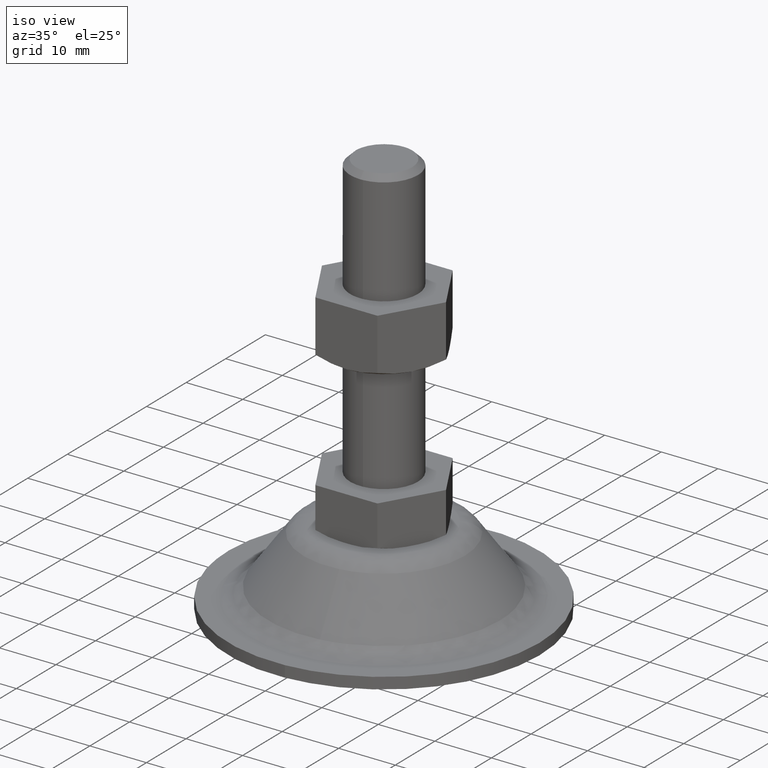
[diagram: clean part render]
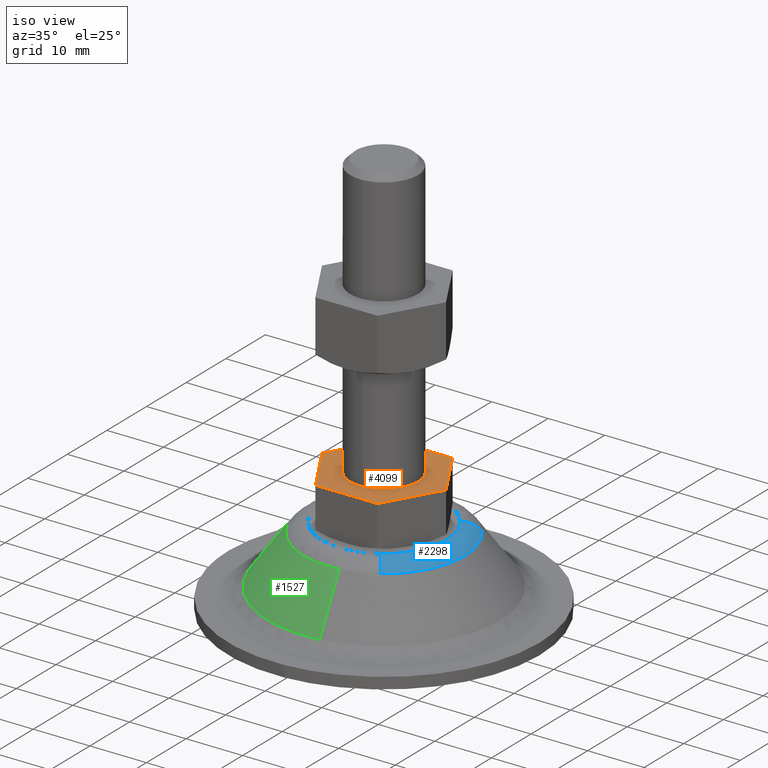
[diagram: same view with three faces highlighted in distinct colors, each labeled with its STEP entity id]
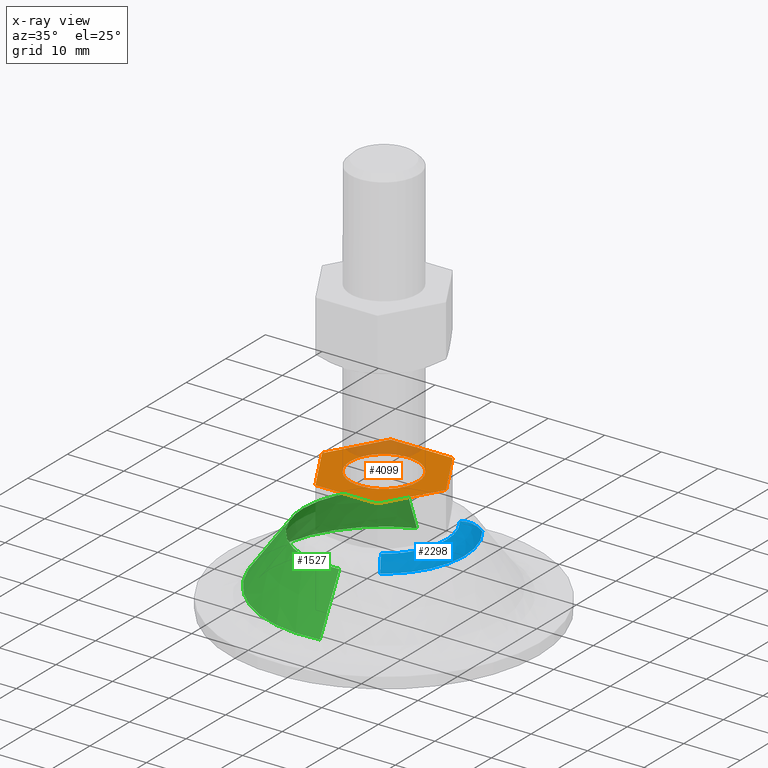
[diagram: x-ray of the same camera — body ghosted, the three highlighted faces saturated]
A machine part, iso view with three faces highlighted in distinct colors.
The next image is the same camera in x-ray (body ghosted, the three faces saturated) — at least one of them is partly hidden behind the body in this view.
Their STEP definitions:

[orange] entity #4099 — the highlighted face is a freeform B-spline surface patch.
#2837=CARTESIAN_POINT('',(0.470754574447207,-5.981504002392460,22.0));
#2838=VERTEX_POINT('',#2837);
#2844=CARTESIAN_POINT('',(6.0,0.0,22.0));
#2845=VERTEX_POINT('',#2844);
#2846=CARTESIAN_POINT('',(6.0,0.0,22.0));
#2847=CARTESIAN_POINT('',(6.000000000000001,-5.546342949800173,22.000000000000004));
#2848=CARTESIAN_POINT('',(0.470754574447207,-5.981504002392460,21.999999999999993));
#2856=(BOUNDED_CURVE()B_SPLINE_CURVE(2,(#2846,#2847,#2848),.UNSPECIFIED.,.F.,.U.)B_SPLINE_CURVE_WITH_KNOTS((3,3),(0.0,0.236331300628174),.UNSPECIFIED.)CURVE()GEOMETRIC_REPRESENTATION_ITEM()RATIONAL_B_SPLINE_CURVE((1.0,0.723120658610578,0.969723356162230))REPRESENTATION_ITEM(''));
#2857=EDGE_CURVE('',#2845,#2838,#2856,.T.);
#2859=CARTESIAN_POINT('',(-0.470754574447207,5.981504002392461,22.0));
#2860=VERTEX_POINT('',#2859);
#2861=CARTESIAN_POINT('',(-0.470754574447208,5.981504002392461,21.999999999999996));
#2862=CARTESIAN_POINT('',(-0.235740642126526,6.000000000000001,22.000000000000004));
#2863=CARTESIAN_POINT('',(0.0,6.0,22.0));
#2864=CARTESIAN_POINT('',(6.0,6.0,22.000000000000007));
#2865=CARTESIAN_POINT('',(6.0,0.0,22.0));
#2873=(BOUNDED_CURVE()B_SPLINE_CURVE(2,(#2861,#2862,#2863,#2864,#2865),.UNSPECIFIED.,.F.,.U.)B_SPLINE_CURVE_WITH_KNOTS((3,2,3),(0.736331300628174,0.750000000000000,1.0),.UNSPECIFIED.)CURVE()GEOMETRIC_REPRESENTATION_ITEM()RATIONAL_B_SPLINE_CURVE((0.969723356162230,0.983986122575969,1.0,0.707106781186548,1.0))REPRESENTATION_ITEM(''));
#2874=EDGE_CURVE('',#2860,#2845,#2873,.T.);
#2908=CARTESIAN_POINT('',(-6.0,0.0,22.0));
#2909=VERTEX_POINT('',#2908);
#2910=CARTESIAN_POINT('',(-6.0,0.0,22.0));
#2911=CARTESIAN_POINT('',(-6.0,5.546342949800190,21.999999999999993));
#2912=CARTESIAN_POINT('',(-0.470754574447208,5.981504002392461,21.999999999999993));
#2920=(BOUNDED_CURVE()B_SPLINE_CURVE(2,(#2910,#2911,#2912),.UNSPECIFIED.,.F.,.U.)B_SPLINE_CURVE_WITH_KNOTS((3,3),(0.500000000000000,0.736331300628174),.UNSPECIFIED.)CURVE()GEOMETRIC_REPRESENTATION_ITEM()RATIONAL_B_SPLINE_CURVE((1.0,0.723120658610578,0.969723356162231))REPRESENTATION_ITEM(''));
#2921=EDGE_CURVE('',#2909,#2860,#2920,.T.);
#2923=CARTESIAN_POINT('',(0.470754574447207,-5.981504002392460,21.999999999999993));
#2924=CARTESIAN_POINT('',(0.235740642126525,-6.0,22.0));
#2925=CARTESIAN_POINT('',(0.0,-6.0,22.0));
#2926=CARTESIAN_POINT('',(-6.0,-6.0,22.000000000000007));
#2927=CARTESIAN_POINT('',(-6.0,0.0,22.0));
#2935=(BOUNDED_CURVE()B_SPLINE_CURVE(2,(#2923,#2924,#2925,#2926,#2927),.UNSPECIFIED.,.F.,.U.)B_SPLINE_CURVE_WITH_KNOTS((3,2,3),(0.236331300628174,0.250000000000000,0.500000000000000),.UNSPECIFIED.)CURVE()GEOMETRIC_REPRESENTATION_ITEM()RATIONAL_B_SPLINE_CURVE((0.969723356162230,0.983986122575970,1.0,0.707106781186548,1.0))REPRESENTATION_ITEM(''));
#2936=EDGE_CURVE('',#2838,#2909,#2935,.T.);
#4044=CARTESIAN_POINT('',(-12.065523697927929,-10.449049963174311,22.0));
#4045=CARTESIAN_POINT('',(12.065524090233341,-10.449049963174311,22.0));
#4046=CARTESIAN_POINT('',(-12.065523697927929,10.449050472794029,22.0));
#4047=CARTESIAN_POINT('',(12.065524090233341,10.449050472794029,22.0));
#4048=B_SPLINE_SURFACE_WITH_KNOTS('',1,1,((#4044,#4046),(#4045,#4047)),.UNSPECIFIED.,.F.,.F.,.U.,(2,2),(2,2),(0.0,24.131047788161268),(0.0,20.898100435968342),.UNSPECIFIED.);
#4049=CARTESIAN_POINT('',(-5.484827000000000,-9.500000000000000,22.0));
#4050=VERTEX_POINT('',#4049);
#4051=CARTESIAN_POINT('',(5.484827999999999,-9.500000000000000,22.0));
#4052=VERTEX_POINT('',#4051);
#4053=CARTESIAN_POINT('',(-5.484827000000000,-9.500000000000000,22.0));
#4054=CARTESIAN_POINT('',(5.484827999999999,-9.500000000000000,22.0));
#4055=QUASI_UNIFORM_CURVE('',1,(#4053,#4054),.UNSPECIFIED.,.F.,.U.);
#4056=EDGE_CURVE('',#4050,#4052,#4055,.T.);
#4057=ORIENTED_EDGE('',*,*,#4056,.T.);
#4058=CARTESIAN_POINT('',(10.969654999999999,0.0,22.0));
#4059=VERTEX_POINT('',#4058);
#4060=CARTESIAN_POINT('',(5.484827999999999,-9.500000000000000,22.0));
#4061=CARTESIAN_POINT('',(10.969654999999999,0.0,22.0));
#4062=QUASI_UNIFORM_CURVE('',1,(#4060,#4061),.UNSPECIFIED.,.F.,.U.);
#4063=EDGE_CURVE('',#4052,#4059,#4062,.T.);
#4064=ORIENTED_EDGE('',*,*,#4063,.T.);
#4065=CARTESIAN_POINT('',(5.484827999999999,9.500000000000000,22.0));
#4066=VERTEX_POINT('',#4065);
#4067=CARTESIAN_POINT('',(10.969654999999999,0.0,22.0));
#4068=CARTESIAN_POINT('',(5.484827999999999,9.500000000000000,22.0));
#4069=QUASI_UNIFORM_CURVE('',1,(#4067,#4068),.UNSPECIFIED.,.F.,.U.);
#4070=EDGE_CURVE('',#4059,#4066,#4069,.T.);
#4071=ORIENTED_EDGE('',*,*,#4070,.T.);
#4072=CARTESIAN_POINT('',(-5.484827000000000,9.500000000000000,22.0));
#4073=VERTEX_POINT('',#4072);
#4074=CARTESIAN_POINT('',(5.484827999999999,9.500000000000000,22.0));
#4075=CARTESIAN_POINT('',(-5.484827000000000,9.500000000000000,22.0));
#4076=QUASI_UNIFORM_CURVE('',1,(#4074,#4075),.UNSPECIFIED.,.F.,.U.);
#4077=EDGE_CURVE('',#4066,#4073,#4076,.T.);
#4078=ORIENTED_EDGE('',*,*,#4077,.T.);
#4079=CARTESIAN_POINT('',(-10.969655000000021,0.0,22.0));
#4080=VERTEX_POINT('',#4079);
#4081=CARTESIAN_POINT('',(-5.484827000000000,9.500000000000000,22.0));
#4082=CARTESIAN_POINT('',(-10.969655000000021,0.0,22.0));
#4083=QUASI_UNIFORM_CURVE('',1,(#4081,#4082),.UNSPECIFIED.,.F.,.U.);
#4084=EDGE_CURVE('',#4073,#4080,#4083,.T.);
#4085=ORIENTED_EDGE('',*,*,#4084,.T.);
#4086=CARTESIAN_POINT('',(-10.969655000000021,0.0,22.0));
#4087=CARTESIAN_POINT('',(-5.484827000000000,-9.500000000000000,22.0));
#4088=QUASI_UNIFORM_CURVE('',1,(#4086,#4087),.UNSPECIFIED.,.F.,.U.);
#4089=EDGE_CURVE('',#4080,#4050,#4088,.T.);
#4090=ORIENTED_EDGE('',*,*,#4089,.T.);
#4091=EDGE_LOOP('',(#4057,#4064,#4071,#4078,#4085,#4090));
#4092=FACE_OUTER_BOUND('',#4091,.T.);
#4093=ORIENTED_EDGE('',*,*,#2921,.T.);
#4094=ORIENTED_EDGE('',*,*,#2874,.T.);
#4095=ORIENTED_EDGE('',*,*,#2857,.T.);
#4096=ORIENTED_EDGE('',*,*,#2936,.T.);
#4097=EDGE_LOOP('',(#4093,#4094,#4095,#4096));
#4098=FACE_BOUND('',#4097,.T.);
#4099=ADVANCED_FACE('',(#4092,#4098),#4048,.T.);

[blue] entity #2298 — the highlighted face is a freeform B-spline surface patch.
#1611=CARTESIAN_POINT('',(11.528268955643940,8.375777670577630,12.332229066283320));
#1612=VERTEX_POINT('',#1611);
#1628=CARTESIAN_POINT('',(14.249724000000020,0.0,12.332229000000099));
#1629=VERTEX_POINT('',#1628);
#1630=CARTESIAN_POINT('',(11.528268955643940,8.375777670577630,12.332229066283316));
#1631=CARTESIAN_POINT('',(14.249724000000016,4.630015993499182,12.332229000000101));
#1632=CARTESIAN_POINT('',(14.249724000000020,0.0,12.332229000000099));
#1640=(BOUNDED_CURVE()B_SPLINE_CURVE(2,(#1630,#1631,#1632),.UNSPECIFIED.,.F.,.U.)B_SPLINE_CURVE_WITH_KNOTS((3,3),(0.398750340999422,0.500000000000000),.UNSPECIFIED.)CURVE()GEOMETRIC_REPRESENTATION_ITEM()RATIONAL_B_SPLINE_CURVE((0.858840265006102,0.881378645886225,1.0))REPRESENTATION_ITEM(''));
#1641=EDGE_CURVE('',#1612,#1629,#1640,.T.);
#1643=CARTESIAN_POINT('',(7.702739872258517,-11.988429219926459,12.332229066270751));
#1644=VERTEX_POINT('',#1643);
#1645=CARTESIAN_POINT('',(14.249724000000020,0.0,12.332229000000099));
#1646=CARTESIAN_POINT('',(14.249724000000018,-7.781896731710817,12.332229000000105));
#1647=CARTESIAN_POINT('',(7.702739872258518,-11.988429219926456,12.332229066270751));
#1655=(BOUNDED_CURVE()B_SPLINE_CURVE(2,(#1645,#1646,#1647),.UNSPECIFIED.,.F.,.U.)B_SPLINE_CURVE_WITH_KNOTS((3,3),(0.500000000000000,0.657460173955830),.UNSPECIFIED.)CURVE()GEOMETRIC_REPRESENTATION_ITEM()RATIONAL_B_SPLINE_CURVE((1.0,0.815523931260603,0.863428933516351))REPRESENTATION_ITEM(''));
#1656=EDGE_CURVE('',#1629,#1644,#1655,.T.);
#2172=CARTESIAN_POINT('',(5.946089766195659,-9.254405247961721,14.0));
#2173=VERTEX_POINT('',#2172);
#2191=CARTESIAN_POINT('',(8.899186938911203,6.465637775887245,14.0));
#2192=VERTEX_POINT('',#2191);
#2208=CARTESIAN_POINT('',(8.899186938911203,6.465637775887245,14.000000000000002));
#2209=CARTESIAN_POINT('',(10.559949388730685,7.672252324497060,13.999999998942421));
#2210=CARTESIAN_POINT('',(11.528268955643936,8.375777670577630,12.332229066283315));
#2218=(BOUNDED_CURVE()B_SPLINE_CURVE(2,(#2208,#2209,#2210),.UNSPECIFIED.,.F.,.U.)B_SPLINE_CURVE_WITH_KNOTS((3,3),(-1.618740155537907,-0.390319360105098),.UNSPECIFIED.)CURVE()GEOMETRIC_REPRESENTATION_ITEM()RATIONAL_B_SPLINE_CURVE((0.917291948513683,0.815431626496268,0.915800522472462))REPRESENTATION_ITEM(''));
#2219=EDGE_CURVE('',#2192,#1612,#2218,.T.);
#2225=CARTESIAN_POINT('',(5.946089766195659,-9.254405247961721,13.999999999999996));
#2226=CARTESIAN_POINT('',(7.055746488386194,-10.981458386600515,13.999999999945967));
#2227=CARTESIAN_POINT('',(7.702739872258517,-11.988429219926450,12.332229066270745));
#2235=(BOUNDED_CURVE()B_SPLINE_CURVE(2,(#2225,#2226,#2227),.UNSPECIFIED.,.F.,.U.)B_SPLINE_CURVE_WITH_KNOTS((3,3),(-1.618740156196064,-0.390319360094702),.UNSPECIFIED.)CURVE()GEOMETRIC_REPRESENTATION_ITEM()RATIONAL_B_SPLINE_CURVE((0.896658200801483,0.797089144998499,0.895200323089700))REPRESENTATION_ITEM(''));
#2236=EDGE_CURVE('',#2173,#1644,#2235,.T.);
#2241=CARTESIAN_POINT('',(8.752588906192633,6.359128070496875,13.995893479540475));
#2242=CARTESIAN_POINT('',(15.111716976689509,-2.393460835695761,13.995893479540477));
#2243=CARTESIAN_POINT('',(6.359128070496875,-8.752588906192633,13.995893479540475));
#2244=CARTESIAN_POINT('',(6.108632978091093,-8.934584243882069,13.995893479540477));
#2245=CARTESIAN_POINT('',(5.848139178864972,-9.101955313140811,13.995893479540486));
#2246=CARTESIAN_POINT('',(10.601433560269035,7.702392339358740,14.099526789685839));
#2247=CARTESIAN_POINT('',(18.303825899627778,-2.899041220910297,14.099526789685839));
#2248=CARTESIAN_POINT('',(7.702392339358740,-10.601433560269035,14.099526789685839));
#2249=CARTESIAN_POINT('',(7.398984158330787,-10.821872507130594,14.099526789685843));
#2250=CARTESIAN_POINT('',(7.083465203315789,-11.024598042360788,14.099526789685848));
#2251=CARTESIAN_POINT('',(11.611181162287151,8.436016914776335,12.182359588724589));
#2252=CARTESIAN_POINT('',(20.047198077063484,-3.175164247510819,12.182359588724589));
#2253=CARTESIAN_POINT('',(8.436016914776335,-11.611181162287151,12.182359588724589));
#2254=CARTESIAN_POINT('',(8.103710219082043,-11.852616109049999,12.182359588724594));
#2255=CARTESIAN_POINT('',(7.758139242667631,-12.074650506794182,12.182359588724596));
#2263=(BOUNDED_SURFACE()B_SPLINE_SURFACE(2,2,((#2241,#2246,#2251),(#2242,#2247,#2252),(#2243,#2248,#2253),(#2244,#2249,#2254),(#2245,#2250,#2255)),.UNSPECIFIED.,.F.,.F.,.U.)B_SPLINE_SURFACE_WITH_KNOTS((3,2,3),(3,3),(0.0,23.779518828556629,24.730698674582239),(0.0,4.252147818302703),.UNSPECIFIED.)GEOMETRIC_REPRESENTATION_ITEM()RATIONAL_B_SPLINE_SURFACE(((0.927972367260647,0.804825693950045,0.926331968535603),(0.656175553643737,0.569097705865245,0.655015616581409),(0.927972367260647,0.804825693950045,0.926331968535603),(0.917100505084196,0.795396583418962,0.915479324807333),(0.907098391052404,0.786721801010981,0.905494891749333)))REPRESENTATION_ITEM('')SURFACE());
#2264=CARTESIAN_POINT('',(11.0,0.0,14.0));
#2265=VERTEX_POINT('',#2264);
#2266=CARTESIAN_POINT('',(11.0,0.0,14.0));
#2267=CARTESIAN_POINT('',(10.999999999999998,-6.007194528750858,14.000000000000005));
#2268=CARTESIAN_POINT('',(5.946089766195658,-9.254405247961721,13.999999999999996));
#2276=(BOUNDED_CURVE()B_SPLINE_CURVE(2,(#2266,#2267,#2268),.UNSPECIFIED.,.F.,.U.)B_SPLINE_CURVE_WITH_KNOTS((3,3),(0.500000000000000,0.657460173956117),.UNSPECIFIED.)CURVE()GEOMETRIC_REPRESENTATION_ITEM()RATIONAL_B_SPLINE_CURVE((1.0,0.815523931260268,0.863428933516525))REPRESENTATION_ITEM(''));
#2277=EDGE_CURVE('',#2265,#2173,#2276,.T.);
#2278=ORIENTED_EDGE('',*,*,#2277,.T.);
#2279=ORIENTED_EDGE('',*,*,#2236,.T.);
#2280=ORIENTED_EDGE('',*,*,#1656,.F.);
#2281=ORIENTED_EDGE('',*,*,#1641,.F.);
#2282=ORIENTED_EDGE('',*,*,#2219,.F.);
#2283=CARTESIAN_POINT('',(8.899186938911203,6.465637775887245,13.999999999999995));
#2284=CARTESIAN_POINT('',(10.999999999999998,3.574116658649990,14.0));
#2285=CARTESIAN_POINT('',(11.0,0.0,14.0));
#2293=(BOUNDED_CURVE()B_SPLINE_CURVE(2,(#2283,#2284,#2285),.UNSPECIFIED.,.F.,.U.)B_SPLINE_CURVE_WITH_KNOTS((3,3),(0.398750340997540,0.500000000000000),.UNSPECIFIED.)CURVE()GEOMETRIC_REPRESENTATION_ITEM()RATIONAL_B_SPLINE_CURVE((0.858840265005265,0.881378645884021,1.0))REPRESENTATION_ITEM(''));
#2294=EDGE_CURVE('',#2192,#2265,#2293,.T.);
#2295=ORIENTED_EDGE('',*,*,#2294,.T.);
#2296=EDGE_LOOP('',(#2278,#2279,#2280,#2281,#2282,#2295));
#2297=FACE_OUTER_BOUND('',#2296,.T.);
#2298=ADVANCED_FACE('',(#2297),#2263,.T.);

[green] entity #1527 — the highlighted face is a freeform B-spline surface patch.
#1429=CARTESIAN_POINT('',(1.952130971736264,-13.958423493912818,12.548840542940395));
#1430=CARTESIAN_POINT('',(-9.044173792084509,-15.496292517120686,12.548840542940393));
#1431=CARTESIAN_POINT('',(-13.113554928368840,-5.165566658836435,12.548840542940400));
#1432=CARTESIAN_POINT('',(-18.279121587205278,7.947988269532404,12.548840542940397));
#1433=CARTESIAN_POINT('',(-5.165566658836435,13.113554928368840,12.548840542940400));
#1434=CARTESIAN_POINT('',(2.856988848530011,-20.428475774706357,3.445743236426595));
#1435=CARTESIAN_POINT('',(-13.236357622650200,-22.679182675738115,3.445743236426595));
#1436=CARTESIAN_POINT('',(-19.191991079170879,-7.559926333993924,3.445743236426596));
#1437=CARTESIAN_POINT('',(-26.751917413164808,11.632064745176960,3.445743236426596));
#1438=CARTESIAN_POINT('',(-7.559926333993924,19.191991079170879,3.445743236426596));
#1446=(BOUNDED_SURFACE()B_SPLINE_SURFACE(2,1,((#1429,#1434),(#1430,#1435),(#1431,#1436),(#1432,#1437),(#1433,#1438)),.UNSPECIFIED.,.F.,.F.,.U.)B_SPLINE_SURFACE_WITH_KNOTS((3,2,3),(2,2),(0.0,28.708184130226030,62.884593809066558),(0.0,11.204763489929460),.UNSPECIFIED.)GEOMETRIC_REPRESENTATION_ITEM()RATIONAL_B_SPLINE_SURFACE(((0.921270302782944,0.921270302782944),(0.753969696196700,0.753969696196700),(1.0,1.0),(0.707106781186548,0.707106781186548),(1.0,1.0)))REPRESENTATION_ITEM('')SURFACE());
#1447=CARTESIAN_POINT('',(2.834919144541612,-20.270669623425619,3.667770002038476));
#1448=VERTEX_POINT('',#1447);
#1449=CARTESIAN_POINT('',(-20.467946000000001,0.0,3.667770000000105));
#1450=VERTEX_POINT('',#1449);
#1451=CARTESIAN_POINT('',(2.834919144541612,-20.270669623425622,3.667770002038477));
#1452=CARTESIAN_POINT('',(1.424323605861548,-20.467946000000005,3.667770000000105));
#1453=CARTESIAN_POINT('',(0.0,-20.467946000000001,3.667770000000105));
#1454=CARTESIAN_POINT('',(-20.467946000000001,-20.467946000000001,3.667770000000106));
#1455=CARTESIAN_POINT('',(-20.467946000000001,0.0,3.667770000000105));
#1463=(BOUNDED_CURVE()B_SPLINE_CURVE(2,(#1451,#1452,#1453,#1454,#1455),.UNSPECIFIED.,.F.,.U.)B_SPLINE_CURVE_WITH_KNOTS((3,2,3),(0.726086221409637,0.750000000000000,1.0),.UNSPECIFIED.)CURVE()GEOMETRIC_REPRESENTATION_ITEM()RATIONAL_B_SPLINE_CURVE((0.949326419172312,0.971983265658705,1.0,0.707106781186547,1.0))REPRESENTATION_ITEM(''));
#1464=EDGE_CURVE('',#1448,#1450,#1463,.T.);
#1465=ORIENTED_EDGE('',*,*,#1464,.F.);
#1466=CARTESIAN_POINT('',(1.973662397509319,-14.112380766074629,12.332229002137201));
#1467=VERTEX_POINT('',#1466);
#1468=CARTESIAN_POINT('',(1.973662397509319,-14.112380766074629,12.332229002137201));
#1469=CARTESIAN_POINT('',(2.834919144541612,-20.270669623425619,3.667770002038476));
#1470=QUASI_UNIFORM_CURVE('',1,(#1468,#1469),.UNSPECIFIED.,.F.,.U.);
#1471=EDGE_CURVE('',#1467,#1448,#1470,.T.);
#1472=ORIENTED_EDGE('',*,*,#1471,.F.);
#1473=CARTESIAN_POINT('',(-14.249724000000020,0.0,12.332229000000099));
#1474=VERTEX_POINT('',#1473);
#1475=CARTESIAN_POINT('',(1.973662397509320,-14.112380766074635,12.332229002137206));
#1476=CARTESIAN_POINT('',(0.991609918583574,-14.249724000000024,12.332229000000101));
#1477=CARTESIAN_POINT('',(0.0,-14.249724000000020,12.332229000000099));
#1478=CARTESIAN_POINT('',(-14.249724000000022,-14.249724000000022,12.332229000000101));
#1479=CARTESIAN_POINT('',(-14.249724000000020,0.0,12.332229000000099));
#1487=(BOUNDED_CURVE()B_SPLINE_CURVE(2,(#1475,#1476,#1477,#1478,#1479),.UNSPECIFIED.,.F.,.U.)B_SPLINE_CURVE_WITH_KNOTS((3,2,3),(0.726086221413735,0.750000000000000,1.0),.UNSPECIFIED.)CURVE()GEOMETRIC_REPRESENTATION_ITEM()RATIONAL_B_SPLINE_CURVE((0.949326419180078,0.971983265663507,1.0,0.707106781186548,1.0))REPRESENTATION_ITEM(''));
#1488=EDGE_CURVE('',#1467,#1474,#1487,.T.);
#1489=ORIENTED_EDGE('',*,*,#1488,.T.);
#1490=CARTESIAN_POINT('',(-5.222541326528953,13.258193548481399,12.332228999994239));
#1491=VERTEX_POINT('',#1490);
#1492=CARTESIAN_POINT('',(-14.249724000000020,0.0,12.332229000000099));
#1493=CARTESIAN_POINT('',(-14.249724000000024,9.702291728036537,12.332229000000103));
#1494=CARTESIAN_POINT('',(-5.222541326528951,13.258193548481394,12.332228999994241));
#1502=(BOUNDED_CURVE()B_SPLINE_CURVE(2,(#1492,#1493,#1494),.UNSPECIFIED.,.F.,.U.)B_SPLINE_CURVE_WITH_KNOTS((3,3),(0.0,0.187769642891567),.UNSPECIFIED.)CURVE()GEOMETRIC_REPRESENTATION_ITEM()RATIONAL_B_SPLINE_CURVE((1.0,0.780014179592146,0.890481630697821))REPRESENTATION_ITEM(''));
#1503=EDGE_CURVE('',#1474,#1491,#1502,.T.);
#1504=ORIENTED_EDGE('',*,*,#1503,.T.);
#1505=CARTESIAN_POINT('',(-7.501527317564008,19.043736538896351,3.667769999995381));
#1506=VERTEX_POINT('',#1505);
#1507=CARTESIAN_POINT('',(-5.222541326528953,13.258193548481399,12.332228999994239));
#1508=CARTESIAN_POINT('',(-7.501527317564008,19.043736538896351,3.667769999995381));
#1509=QUASI_UNIFORM_CURVE('',1,(#1507,#1508),.UNSPECIFIED.,.F.,.U.);
#1510=EDGE_CURVE('',#1491,#1506,#1509,.T.);
#1511=ORIENTED_EDGE('',*,*,#1510,.T.);
#1512=CARTESIAN_POINT('',(-20.467946000000001,0.0,3.667770000000105));
#1513=CARTESIAN_POINT('',(-20.467946000000008,13.936128388615094,3.667770000000105));
#1514=CARTESIAN_POINT('',(-7.501527317564008,19.043736538896351,3.667769999995380));
#1522=(BOUNDED_CURVE()B_SPLINE_CURVE(2,(#1512,#1513,#1514),.UNSPECIFIED.,.F.,.U.)B_SPLINE_CURVE_WITH_KNOTS((3,3),(0.0,0.187769642892033),.UNSPECIFIED.)CURVE()GEOMETRIC_REPRESENTATION_ITEM()RATIONAL_B_SPLINE_CURVE((1.0,0.780014179591600,0.890481630698369))REPRESENTATION_ITEM(''));
#1523=EDGE_CURVE('',#1450,#1506,#1522,.T.);
#1524=ORIENTED_EDGE('',*,*,#1523,.F.);
#1525=EDGE_LOOP('',(#1465,#1472,#1489,#1504,#1511,#1524));
#1526=FACE_OUTER_BOUND('',#1525,.T.);
#1527=ADVANCED_FACE('',(#1526),#1446,.T.);